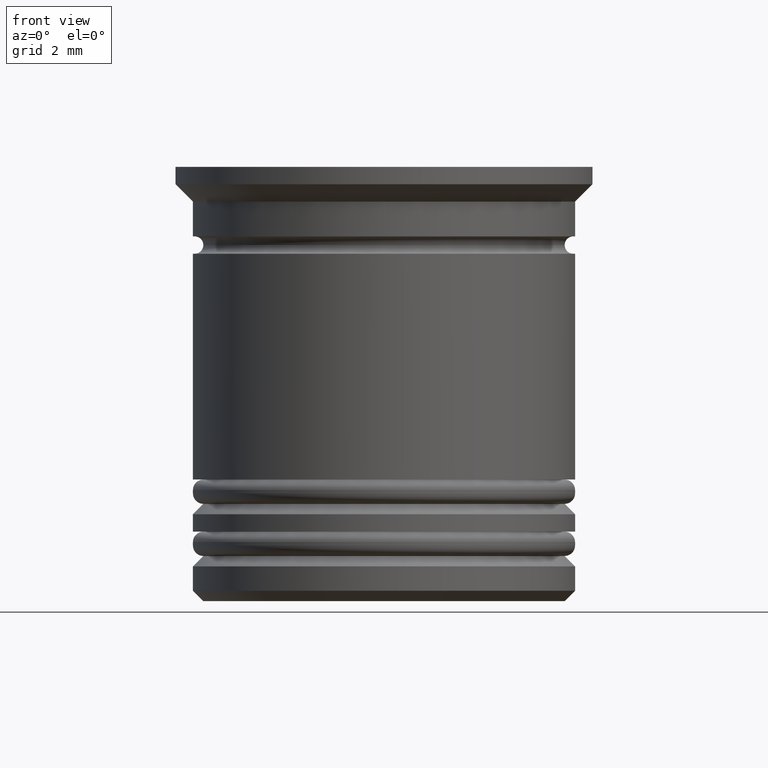
[diagram: clean part render]
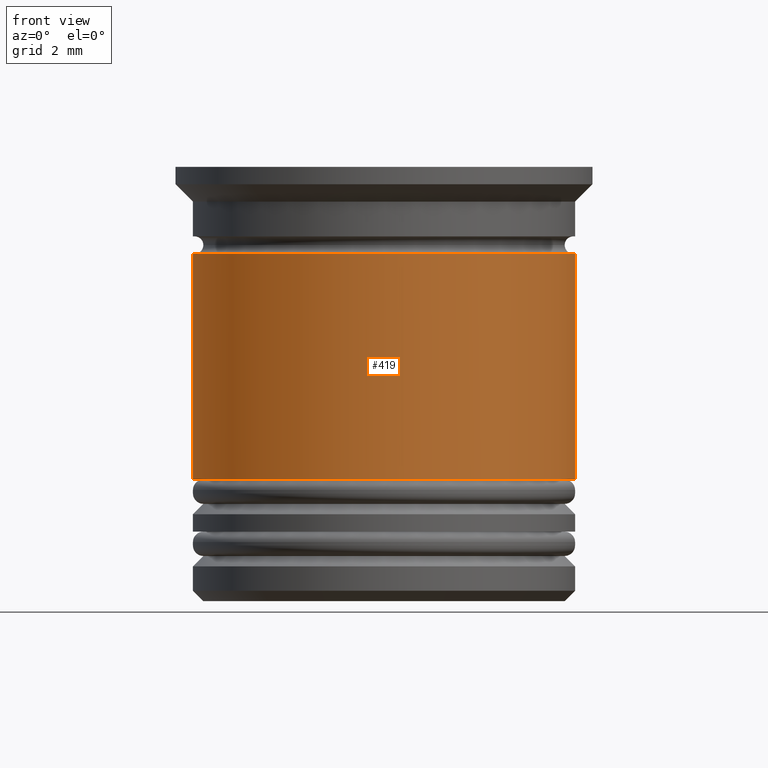
[diagram: same view with one face highlighted and labeled with its STEP entity id]
A machine part, front view. The second image highlights one B-rep face of the part: STEP entity #419.
In plain terms, the highlighted cylindrical surface (partial cylindrical patch) has radius 5.5 mm, axis along (-0, -0, 1).
Its self-contained STEP definition (entity closure, byte-faithful):
#14 = DIRECTION ( 'NONE',  ( 1.000000000000000000, 0.000000000000000000, 0.000000000000000000 ) ) ;
#54 = AXIS2_PLACEMENT_3D ( 'NONE', #1355, #1977, #910 ) ;
#147 = AXIS2_PLACEMENT_3D ( 'NONE', #316, #782, #1542 ) ;
#209 = VECTOR ( 'NONE', #276, 1000.000000000000000 ) ;
#257 = EDGE_LOOP ( 'NONE', ( #300, #721, #1338, #1194 ) ) ;
#276 = DIRECTION ( 'NONE',  ( -0.000000000000000000, -0.000000000000000000, 1.000000000000000000 ) ) ;
#300 = ORIENTED_EDGE ( 'NONE', *, *, #1658, .F. ) ;
#310 = EDGE_CURVE ( 'NONE', #1396, #460, #922, .T. ) ;
#313 = LINE ( 'NONE', #1340, #209 ) ;
#316 = CARTESIAN_POINT ( 'NONE',  ( 0.000000000000000000, 0.000000000000000000, 0.000000000000000000 ) ) ;
#419 = ADVANCED_FACE ( 'NONE', ( #1238 ), #1120, .T. ) ;
#460 = VERTEX_POINT ( 'NONE', #1266 ) ;
#472 = EDGE_CURVE ( 'NONE', #1280, #884, #1081, .T. ) ;
#721 = ORIENTED_EDGE ( 'NONE', *, *, #310, .T. ) ;
#782 = DIRECTION ( 'NONE',  ( -0.000000000000000000, -0.000000000000000000, 1.000000000000000000 ) ) ;
#884 = VERTEX_POINT ( 'NONE', #1917 ) ;
#910 = DIRECTION ( 'NONE',  ( 1.000000000000000000, 0.000000000000000000, 0.000000000000000000 ) ) ;
#922 = CIRCLE ( 'NONE', #54, 5.500000000000001776 ) ;
#932 = LINE ( 'NONE', #1384, #1814 ) ;
#1081 = CIRCLE ( 'NONE', #1653, 5.499999999999999112 ) ;
#1120 = CYLINDRICAL_SURFACE ( 'NONE', #147, 5.500000000000000000 ) ;
#1191 = CARTESIAN_POINT ( 'NONE',  ( -5.499999999999999112, 6.735557395310441037E-16, -2.500000000000000000 ) ) ;
#1194 = ORIENTED_EDGE ( 'NONE', *, *, #472, .F. ) ;
#1238 = FACE_OUTER_BOUND ( 'NONE', #257, .T. ) ;
#1266 = CARTESIAN_POINT ( 'NONE',  ( 5.500000000000001776, 0.000000000000000000, -9.000000000000001776 ) ) ;
#1280 = VERTEX_POINT ( 'NONE', #1191 ) ;
#1338 = ORIENTED_EDGE ( 'NONE', *, *, #1620, .T. ) ;
#1340 = CARTESIAN_POINT ( 'NONE',  ( 5.500000000000000000, 0.000000000000000000, 0.000000000000000000 ) ) ;
#1355 = CARTESIAN_POINT ( 'NONE',  ( 0.000000000000000000, 0.000000000000000000, -9.000000000000001776 ) ) ;
#1384 = CARTESIAN_POINT ( 'NONE',  ( -5.500000000000000000, 6.735557395310442023E-16, 0.000000000000000000 ) ) ;
#1396 = VERTEX_POINT ( 'NONE', #1833 ) ;
#1542 = DIRECTION ( 'NONE',  ( 1.000000000000000000, 0.000000000000000000, 0.000000000000000000 ) ) ;
#1620 = EDGE_CURVE ( 'NONE', #460, #884, #313, .T. ) ;
#1653 = AXIS2_PLACEMENT_3D ( 'NONE', #1876, #1857, #14 ) ;
#1658 = EDGE_CURVE ( 'NONE', #1396, #1280, #932, .T. ) ;
#1814 = VECTOR ( 'NONE', #1840, 1000.000000000000000 ) ;
#1833 = CARTESIAN_POINT ( 'NONE',  ( -5.500000000000000888, 6.735557395310443995E-16, -9.000000000000001776 ) ) ;
#1840 = DIRECTION ( 'NONE',  ( -0.000000000000000000, -0.000000000000000000, 1.000000000000000000 ) ) ;
#1857 = DIRECTION ( 'NONE',  ( -0.000000000000000000, -0.000000000000000000, 1.000000000000000000 ) ) ;
#1876 = CARTESIAN_POINT ( 'NONE',  ( 0.000000000000000000, 0.000000000000000000, -2.500000000000000000 ) ) ;
#1917 = CARTESIAN_POINT ( 'NONE',  ( 5.499999999999999112, 0.000000000000000000, -2.500000000000000000 ) ) ;
#1977 = DIRECTION ( 'NONE',  ( -0.000000000000000000, -0.000000000000000000, 1.000000000000000000 ) ) ;